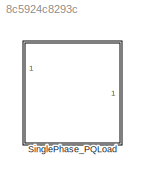
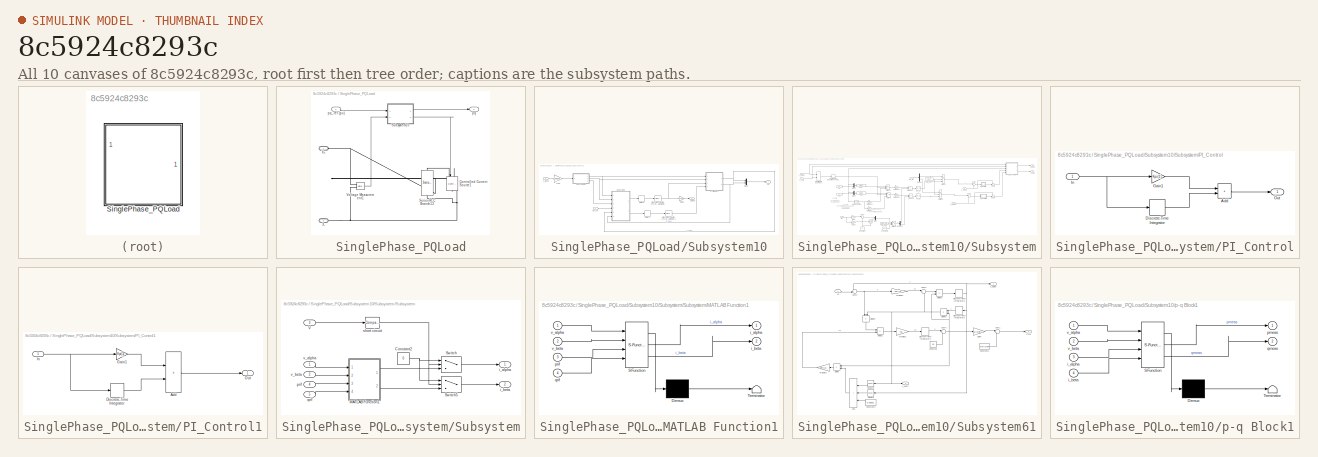
[diagram: thumbnail index - all 10 canvases of the model, root first then tree order]
MODEL slx_8c5924c8293c
KIND library
CONFIG AbsTol = auto
CONFIG EnableMultiTasking = off
CONFIG FixedStep = auto
CONFIG MaxStep = auto
CONFIG MinStep = auto
CONFIG RelTol = 1e-3
CONFIG SampleTimeConstraint = Unconstrained
CONFIG SolverName = VariableStepAuto
CONFIG StartTime = 0.0
CONFIG StopTime = 10.0
BLOCK [SubSystem] SinglePhase_PQLoad
  AncestorBlock = SinglePhase_PQLoad/SinglePhase_PQLoadwithFeedForwardwoFilter_woFreqDependency
  Ports = [1, 1, 0, 0, 0, 2]
  RequestExecContextInheritance = off
BLOCK [Reference] SinglePhase_PQLoad/Controlled Current Source1  REF=spsControlledCurrentSourceLib/Controlled Current Source
  NameLocation = left
  Ports = [1, 0, 0, 0, 0, 1, 1]
  SourceBlock = spsControlledCurrentSourceLib/Controlled Current Source
  SourceProductBaseCode = PS
  SourceType = Controlled Current Source
BLOCK [Reference] SinglePhase_PQLoad/Series RLC Branch12  REF=spsSeriesRLCBranchLib/Series RLC Branch
  NameLocation = left
  Ports = [0, 0, 0, 0, 0, 1, 1]
  SourceBlock = spsSeriesRLCBranchLib/Series RLC Branch
  SourceProductBaseCode = PS
  SourceType = Series RLC Branch
BLOCK [SubSystem] SinglePhase_PQLoad/Subsystem10
  Ports = [2, 2]
  RequestExecContextInheritance = off
BLOCK [Delay] SinglePhase_PQLoad/Subsystem10/Delay6
  DelayLength = 1
  InitialCondition = 0
  InputPortMap = u0
  Ports = [1, 1]
BLOCK [Delay] SinglePhase_PQLoad/Subsystem10/Delay7
  DelayLength = 1
  InitialCondition = 0
  InputPortMap = u0
  Ports = [1, 1]
BLOCK [Reference] SinglePhase_PQLoad/Subsystem10/Discrete Transfer Fcn (with initial outputs)  REF=simulink_extras/Additional
Discrete/Discrete
Transfer Fcn
(with initial outputs)
  Ports = [1, 1]
  SourceBlock = simulink_extras/Additional\nDiscrete/Discrete\nTransfer Fcn\n(with initial outputs)
  SourceProductBaseCode = SL
  SourceType = Discrete Transfer Function with Initial Outputs
BLOCK [Reference] SinglePhase_PQLoad/Subsystem10/Discrete Transfer Fcn (with initial outputs)1  REF=simulink_extras/Additional
Discrete/Discrete
Transfer Fcn
(with initial outputs)
  Ports = [1, 1]
  SourceBlock = simulink_extras/Additional\nDiscrete/Discrete\nTransfer Fcn\n(with initial outputs)
  SourceProductBaseCode = SL
  SourceType = Discrete Transfer Function with Initial Outputs
BLOCK [Gain] SinglePhase_PQLoad/Subsystem10/Gain1
  Gain = BasePower/(Vbase/sqrt(2))
BLOCK [Mux] SinglePhase_PQLoad/Subsystem10/Mux3
  DisplayOption = bar
  Inputs = 2
  Ports = [2, 1]
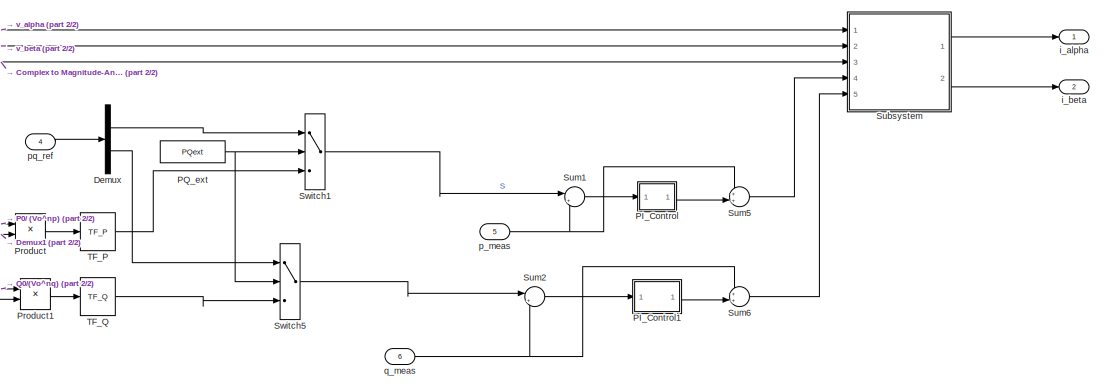
[diagram: SinglePhase_PQLoad/Subsystem10/Subsystem - part 1/2, middle right region]
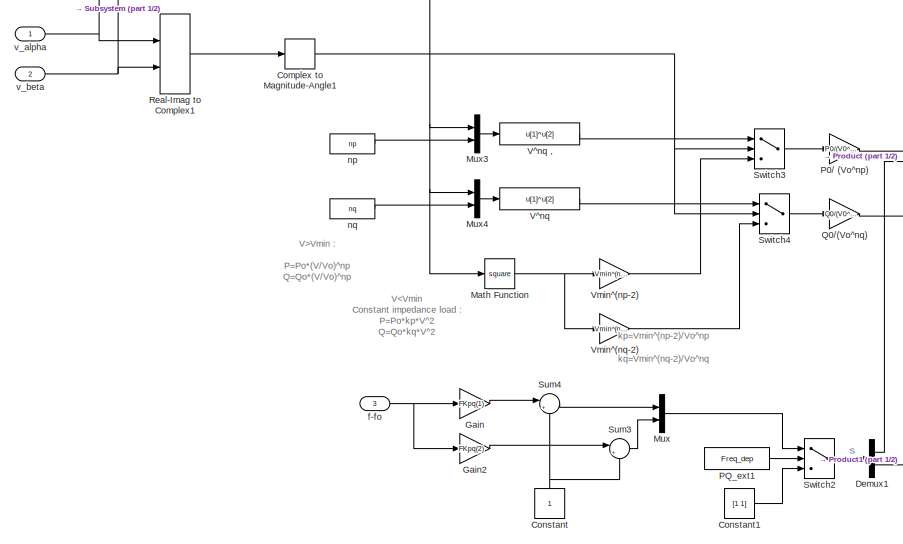
[diagram: SinglePhase_PQLoad/Subsystem10/Subsystem - part 2/2, left side, full height]
BLOCK [SubSystem] SinglePhase_PQLoad/Subsystem10/Subsystem
  Ports = [6, 2]
  RequestExecContextInheritance = off
BLOCK [ComplexToMagnitudeAngle] SinglePhase_PQLoad/Subsystem10/Subsystem/Complex to Magnitude-Angle1
  Output = Magnitude
  Ports = [1, 1]
BLOCK [Constant] SinglePhase_PQLoad/Subsystem10/Subsystem/Constant
  NameLocation = right
BLOCK [Constant] SinglePhase_PQLoad/Subsystem10/Subsystem/Constant1
  Value = [1 1]
BLOCK [Demux] SinglePhase_PQLoad/Subsystem10/Subsystem/Demux
  Outputs = 2
  Ports = [1, 2]
BLOCK [Demux] SinglePhase_PQLoad/Subsystem10/Subsystem/Demux1
  Outputs = 2
  Ports = [1, 2]
BLOCK [Gain] SinglePhase_PQLoad/Subsystem10/Subsystem/Gain
  Gain = FKpq(1)
BLOCK [Gain] SinglePhase_PQLoad/Subsystem10/Subsystem/Gain2
  Gain = FKpq(2)
BLOCK [Math] SinglePhase_PQLoad/Subsystem10/Subsystem/Math Function
  Operator = square
  Ports = [1, 1]
  SignedPower = on
BLOCK [Mux] SinglePhase_PQLoad/Subsystem10/Subsystem/Mux
  DisplayOption = bar
  Inputs = 2
  Ports = [2, 1]
BLOCK [Mux] SinglePhase_PQLoad/Subsystem10/Subsystem/Mux3
  DisplayOption = bar
  Inputs = 2
  Ports = [2, 1]
BLOCK [Mux] SinglePhase_PQLoad/Subsystem10/Subsystem/Mux4
  DisplayOption = bar
  Inputs = 2
  Ports = [2, 1]
BLOCK [Gain] SinglePhase_PQLoad/Subsystem10/Subsystem/P0// (Vo^np)
  Gain = P0/(V0^np)
  OutDataTypeStr = Inherit: Same as input
  ParamDataTypeStr = Inherit: Same as input
  SaturateOnIntegerOverflow = on
BLOCK [SubSystem] SinglePhase_PQLoad/Subsystem10/Subsystem/PI_Control
  Ports = [1, 1]
  RequestExecContextInheritance = off
BLOCK [Sum] SinglePhase_PQLoad/Subsystem10/Subsystem/PI_Control/Add
  IconShape = rectangular
  Ports = [2, 1]
BLOCK [DiscreteIntegrator] SinglePhase_PQLoad/Subsystem10/Subsystem/PI_Control/Discrete-Time Integrator
  ICPrevOutput = DiscIntNeverNeededParam
  ICPrevScaledInput = DiscIntNeverNeededParam
  InitialConditionSetting = Auto
  Ports = [1, 1]
  SampleTime = -1
  gainval = Kpi(2)
BLOCK [Gain] SinglePhase_PQLoad/Subsystem10/Subsystem/PI_Control/Gain1
  Gain = Kpi(1)
BLOCK [Inport] SinglePhase_PQLoad/Subsystem10/Subsystem/PI_Control/In
BLOCK [Outport] SinglePhase_PQLoad/Subsystem10/Subsystem/PI_Control/Out
BLOCK [SubSystem] SinglePhase_PQLoad/Subsystem10/Subsystem/PI_Control1
  Ports = [1, 1]
  RequestExecContextInheritance = off
BLOCK [Sum] SinglePhase_PQLoad/Subsystem10/Subsystem/PI_Control1/Add
  IconShape = rectangular
  Ports = [2, 1]
BLOCK [DiscreteIntegrator] SinglePhase_PQLoad/Subsystem10/Subsystem/PI_Control1/Discrete-Time Integrator
  ICPrevOutput = DiscIntNeverNeededParam
  ICPrevScaledInput = DiscIntNeverNeededParam
  InitialConditionSetting = Auto
  Ports = [1, 1]
  SampleTime = -1
  gainval = Kpi(2)
BLOCK [Gain] SinglePhase_PQLoad/Subsystem10/Subsystem/PI_Control1/Gain1
  Gain = Kpi(1)
BLOCK [Inport] SinglePhase_PQLoad/Subsystem10/Subsystem/PI_Control1/In
BLOCK [Outport] SinglePhase_PQLoad/Subsystem10/Subsystem/PI_Control1/Out
BLOCK [Constant] SinglePhase_PQLoad/Subsystem10/Subsystem/PQ_ext
  Value = PQext
BLOCK [Constant] SinglePhase_PQLoad/Subsystem10/Subsystem/PQ_ext1
  Value = Freq_dep
BLOCK [Product] SinglePhase_PQLoad/Subsystem10/Subsystem/Product
  Ports = [2, 1]
BLOCK [Product] SinglePhase_PQLoad/Subsystem10/Subsystem/Product1
  Ports = [2, 1]
BLOCK [Gain] SinglePhase_PQLoad/Subsystem10/Subsystem/Q0//(Vo^nq)
  Gain = Q0/(V0^nq)
  OutDataTypeStr = Inherit: Same as input
  ParamDataTypeStr = Inherit: Same as input
  SaturateOnIntegerOverflow = on
BLOCK [RealImagToComplex] SinglePhase_PQLoad/Subsystem10/Subsystem/Real-Imag to Complex1
  Ports = [2, 1]
BLOCK [SubSystem] SinglePhase_PQLoad/Subsystem10/Subsystem/Subsystem
  Ports = [5, 2]
  RequestExecContextInheritance = off
BLOCK [Constant] SinglePhase_PQLoad/Subsystem10/Subsystem/Subsystem/Constant2
  Value = 0
BLOCK [SubSystem] SinglePhase_PQLoad/Subsystem10/Subsystem/Subsystem/MATLAB Function1
  ErrorFcn = Stateflow.Translate.translate
  PermitHierarchicalResolution = ExplicitOnly
  Ports = [4, 2]
  RequestExecContextInheritance = off
  SFBlockType = MATLAB Function
  TreatAsAtomicUnit = on
BLOCK [Demux] SinglePhase_PQLoad/Subsystem10/Subsystem/Subsystem/MATLAB Function1/ Demux 
  Outputs = 1
  Ports = [1, 1]
BLOCK [S-Function] SinglePhase_PQLoad/Subsystem10/Subsystem/Subsystem/MATLAB Function1/ SFunction 
  EnableBusSupport = off
  FunctionName = sf_sfun
  PortCounts = [4 3]
  Ports = [4, 3]
  SFcnIsStateOwnerBlock = off
  SFunctionDeploymentMode = off
  Tag = Stateflow S-Function 3
BLOCK [Terminator] SinglePhase_PQLoad/Subsystem10/Subsystem/Subsystem/MATLAB Function1/ Terminator 
BLOCK [Outport] SinglePhase_PQLoad/Subsystem10/Subsystem/Subsystem/MATLAB Function1/i_alpha
BLOCK [Outport] SinglePhase_PQLoad/Subsystem10/Subsystem/Subsystem/MATLAB Function1/i_beta
  Port = 2
BLOCK [Inport] SinglePhase_PQLoad/Subsystem10/Subsystem/Subsystem/MATLAB Function1/prif
  Port = 3
BLOCK [Inport] SinglePhase_PQLoad/Subsystem10/Subsystem/Subsystem/MATLAB Function1/qrif
  Port = 4
BLOCK [Inport] SinglePhase_PQLoad/Subsystem10/Subsystem/Subsystem/MATLAB Function1/v_alpha
BLOCK [Inport] SinglePhase_PQLoad/Subsystem10/Subsystem/Subsystem/MATLAB Function1/v_beta
  Port = 2
BLOCK [Switch] SinglePhase_PQLoad/Subsystem10/Subsystem/Subsystem/Switch
  Criteria = u2 > Threshold
  InputSameDT = off
  SaturateOnIntegerOverflow = off
BLOCK [Switch] SinglePhase_PQLoad/Subsystem10/Subsystem/Subsystem/Switch5
  Criteria = u2 > Threshold
  InputSameDT = off
  SaturateOnIntegerOverflow = off
BLOCK [Inport] SinglePhase_PQLoad/Subsystem10/Subsystem/Subsystem/V
  Port = 3
BLOCK [Outport] SinglePhase_PQLoad/Subsystem10/Subsystem/Subsystem/i_alpha
BLOCK [Outport] SinglePhase_PQLoad/Subsystem10/Subsystem/Subsystem/i_beta
  Port = 2
BLOCK [Inport] SinglePhase_PQLoad/Subsystem10/Subsystem/Subsystem/prif
  NameLocation = left
  Port = 4
BLOCK [Inport] SinglePhase_PQLoad/Subsystem10/Subsystem/Subsystem/qrif
  NameLocation = left
  Port = 5
BLOCK [Reference] SinglePhase_PQLoad/Subsystem10/Subsystem/Subsystem/short circuit  REF=simulink/Logic and Bit
Operations/Compare
To Constant
  Ports = [1, 1]
  SourceBlock = simulink/Logic and Bit\nOperations/Compare\nTo Constant
  SourceProductBaseCode = SL
  SourceType = Compare To Constant
BLOCK [Inport] SinglePhase_PQLoad/Subsystem10/Subsystem/Subsystem/v_alpha
  NameLocation = left
BLOCK [Inport] SinglePhase_PQLoad/Subsystem10/Subsystem/Subsystem/v_beta
  NameLocation = left
  Port = 2
BLOCK [Sum] SinglePhase_PQLoad/Subsystem10/Subsystem/Sum1
  Inputs = |+-
  Ports = [2, 1]
BLOCK [Sum] SinglePhase_PQLoad/Subsystem10/Subsystem/Sum2
  Inputs = |+-
  Ports = [2, 1]
BLOCK [Sum] SinglePhase_PQLoad/Subsystem10/Subsystem/Sum3
  Inputs = |++
  Ports = [2, 1]
BLOCK [Sum] SinglePhase_PQLoad/Subsystem10/Subsystem/Sum4
  Inputs = |++
  Ports = [2, 1]
BLOCK [Sum] SinglePhase_PQLoad/Subsystem10/Subsystem/Sum5
  Inputs = ++|
  Ports = [2, 1]
BLOCK [Sum] SinglePhase_PQLoad/Subsystem10/Subsystem/Sum6
  Inputs = ++|
  Ports = [2, 1]
BLOCK [Switch] SinglePhase_PQLoad/Subsystem10/Subsystem/Switch1
  SaturateOnIntegerOverflow = off
  Threshold = 0.5
BLOCK [Switch] SinglePhase_PQLoad/Subsystem10/Subsystem/Switch2
  SaturateOnIntegerOverflow = off
  Threshold = 0.5
BLOCK [Switch] SinglePhase_PQLoad/Subsystem10/Subsystem/Switch3
  SaturateOnIntegerOverflow = off
  Threshold = Vmin
BLOCK [Switch] SinglePhase_PQLoad/Subsystem10/Subsystem/Switch4
  SaturateOnIntegerOverflow = off
  Threshold = Vmin
BLOCK [Switch] SinglePhase_PQLoad/Subsystem10/Subsystem/Switch5
  SaturateOnIntegerOverflow = off
  Threshold = 0.5
BLOCK [Reference] SinglePhase_PQLoad/Subsystem10/Subsystem/TF_P  REF=spsDynamicLoadModel/Discrete/Positive Sequence 
current/TF_P
  Ports = [1, 1]
  SourceBlock = spsDynamicLoadModel/Discrete/Positive Sequence \ncurrent/TF_P
  SourceProductBaseCode = PS
  SourceType = Discrete Lead-Lag Controller
BLOCK [Reference] SinglePhase_PQLoad/Subsystem10/Subsystem/TF_Q  REF=spsDynamicLoadModel/Discrete/Positive Sequence 
current/TF_Q
  Ports = [1, 1]
  SourceBlock = spsDynamicLoadModel/Discrete/Positive Sequence \ncurrent/TF_Q
  SourceProductBaseCode = PS
  SourceType = Discrete Lead-Lag Controller
BLOCK [Fcn] SinglePhase_PQLoad/Subsystem10/Subsystem/V^nq
  Expr = u[1]^u[2]
BLOCK [Fcn] SinglePhase_PQLoad/Subsystem10/Subsystem/V^nq ,
  Expr = u[1]^u[2]
BLOCK [Gain] SinglePhase_PQLoad/Subsystem10/Subsystem/Vmin^(np-2)
  Gain = Vmin^(np-2)
  OutDataTypeStr = Inherit: Same as input
  ParamDataTypeStr = Inherit: Same as input
  SaturateOnIntegerOverflow = on
BLOCK [Gain] SinglePhase_PQLoad/Subsystem10/Subsystem/Vmin^(nq-2)
  Gain = Vmin^(nq-2)
  OutDataTypeStr = Inherit: Same as input
  ParamDataTypeStr = Inherit: Same as input
  SaturateOnIntegerOverflow = on
BLOCK [Inport] SinglePhase_PQLoad/Subsystem10/Subsystem/f-fo
  Port = 3
BLOCK [Outport] SinglePhase_PQLoad/Subsystem10/Subsystem/i_alpha
BLOCK [Outport] SinglePhase_PQLoad/Subsystem10/Subsystem/i_beta
  Port = 2
BLOCK [Constant] SinglePhase_PQLoad/Subsystem10/Subsystem/np
  Value = np
BLOCK [Constant] SinglePhase_PQLoad/Subsystem10/Subsystem/nq
  Value = nq
BLOCK [Inport] SinglePhase_PQLoad/Subsystem10/Subsystem/p_meas
  Port = 5
BLOCK [Inport] SinglePhase_PQLoad/Subsystem10/Subsystem/pq_ref
  Port = 4
BLOCK [Inport] SinglePhase_PQLoad/Subsystem10/Subsystem/q_meas
  Port = 6
BLOCK [Inport] SinglePhase_PQLoad/Subsystem10/Subsystem/v_alpha
BLOCK [Inport] SinglePhase_PQLoad/Subsystem10/Subsystem/v_beta
  Port = 2
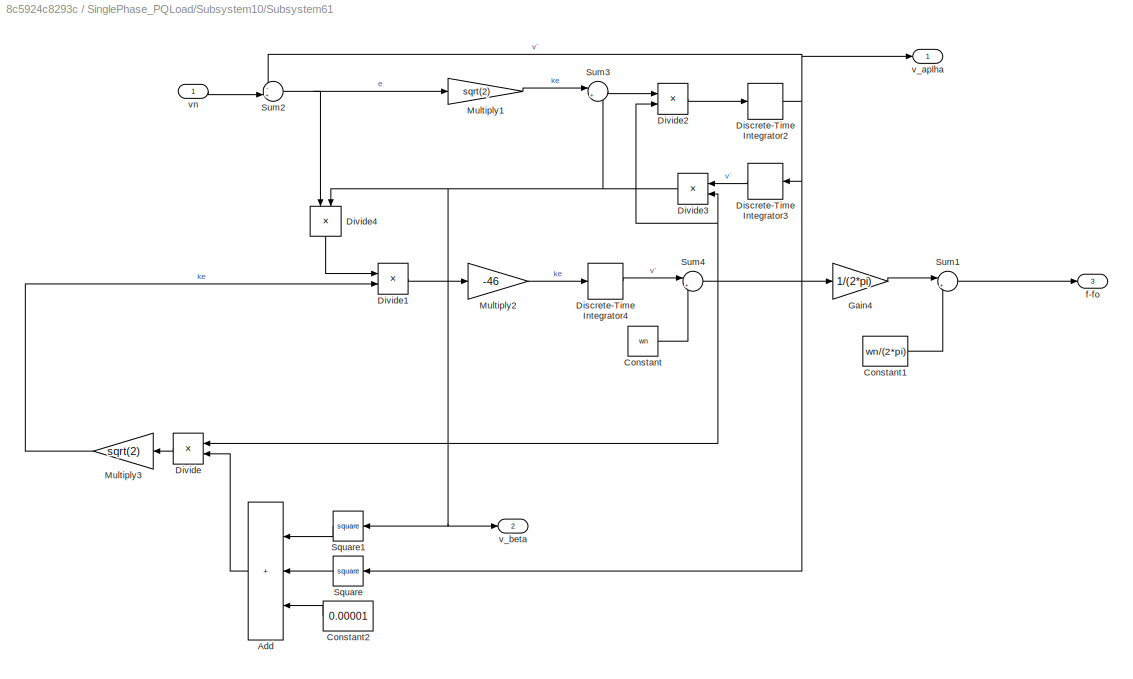
BLOCK [SubSystem] SinglePhase_PQLoad/Subsystem10/Subsystem61
  Ports = [1, 3]
  RequestExecContextInheritance = off
BLOCK [Sum] SinglePhase_PQLoad/Subsystem10/Subsystem61/Add
  IconShape = rectangular
  Inputs = +++
  NameLocation = top
  Ports = [3, 1]
BLOCK [Constant] SinglePhase_PQLoad/Subsystem10/Subsystem61/Constant
  Value = wn
BLOCK [Constant] SinglePhase_PQLoad/Subsystem10/Subsystem61/Constant1
  Value = wn/(2*pi)
BLOCK [Constant] SinglePhase_PQLoad/Subsystem10/Subsystem61/Constant2
  NameLocation = top
  Value = 0.00001
BLOCK [DiscreteIntegrator] SinglePhase_PQLoad/Subsystem10/Subsystem61/Discrete-Time Integrator2
  ICPrevOutput = DiscIntNeverNeededParam
  ICPrevScaledInput = DiscIntNeverNeededParam
  InitialConditionSetting = Auto
  Ports = [1, 1]
  SampleTime = -1
BLOCK [DiscreteIntegrator] SinglePhase_PQLoad/Subsystem10/Subsystem61/Discrete-Time Integrator3
  ICPrevOutput = DiscIntNeverNeededParam
  ICPrevScaledInput = DiscIntNeverNeededParam
  InitialConditionSetting = Auto
  IntegratorMethod = Integration: Backward Euler
  NameLocation = top
  Ports = [1, 1]
  SampleTime = -1
BLOCK [DiscreteIntegrator] SinglePhase_PQLoad/Subsystem10/Subsystem61/Discrete-Time Integrator4
  ICPrevOutput = DiscIntNeverNeededParam
  ICPrevScaledInput = DiscIntNeverNeededParam
  InitialConditionSetting = Auto
  Ports = [1, 1]
  SampleTime = -1
BLOCK [Product] SinglePhase_PQLoad/Subsystem10/Subsystem61/Divide
  Inputs = */
  NameLocation = top
  Ports = [2, 1]
BLOCK [Product] SinglePhase_PQLoad/Subsystem10/Subsystem61/Divide1
  Inputs = **
  Ports = [2, 1]
BLOCK [Product] SinglePhase_PQLoad/Subsystem10/Subsystem61/Divide2
  Inputs = **
  Ports = [2, 1]
BLOCK [Product] SinglePhase_PQLoad/Subsystem10/Subsystem61/Divide3
  Inputs = **
  NameLocation = top
  Ports = [2, 1]
BLOCK [Product] SinglePhase_PQLoad/Subsystem10/Subsystem61/Divide4
  Inputs = **
  NameLocation = left
  Ports = [2, 1]
BLOCK [Gain] SinglePhase_PQLoad/Subsystem10/Subsystem61/Gain4
  Gain = 1/(2*pi)
BLOCK [Gain] SinglePhase_PQLoad/Subsystem10/Subsystem61/Multiply1
  Gain = sqrt(2)
BLOCK [Gain] SinglePhase_PQLoad/Subsystem10/Subsystem61/Multiply2
  Gain = -46
BLOCK [Gain] SinglePhase_PQLoad/Subsystem10/Subsystem61/Multiply3
  Gain = sqrt(2)
  NameLocation = top
BLOCK [Math] SinglePhase_PQLoad/Subsystem10/Subsystem61/Square
  NameLocation = top
  Operator = square
  Ports = [1, 1]
BLOCK [Math] SinglePhase_PQLoad/Subsystem10/Subsystem61/Square1
  NameLocation = top
  Operator = square
  Ports = [1, 1]
BLOCK [Sum] SinglePhase_PQLoad/Subsystem10/Subsystem61/Sum1
  Inputs = |+-
  Ports = [2, 1]
BLOCK [Sum] SinglePhase_PQLoad/Subsystem10/Subsystem61/Sum2
  Inputs = -+|
  Ports = [2, 1]
BLOCK [Sum] SinglePhase_PQLoad/Subsystem10/Subsystem61/Sum3
  Inputs = |+-
  Ports = [2, 1]
BLOCK [Sum] SinglePhase_PQLoad/Subsystem10/Subsystem61/Sum4
  Inputs = |++
  Ports = [2, 1]
BLOCK [Outport] SinglePhase_PQLoad/Subsystem10/Subsystem61/f-fo
  Port = 3
BLOCK [Outport] SinglePhase_PQLoad/Subsystem10/Subsystem61/v_aplha
BLOCK [Outport] SinglePhase_PQLoad/Subsystem10/Subsystem61/v_beta
  Port = 2
BLOCK [Inport] SinglePhase_PQLoad/Subsystem10/Subsystem61/vn
BLOCK [Gain] SinglePhase_PQLoad/Subsystem10/V>pu
  Gain = 1/Vbase/sqrt(2)
BLOCK [Outport] SinglePhase_PQLoad/Subsystem10/i_alpha
  Port = 2
BLOCK [SubSystem] SinglePhase_PQLoad/Subsystem10/p-q Block1
  ErrorFcn = Stateflow.Translate.translate
  PermitHierarchicalResolution = ExplicitOnly
  Ports = [4, 2]
  RequestExecContextInheritance = off
  SFBlockType = MATLAB Function
  TreatAsAtomicUnit = on
BLOCK [Demux] SinglePhase_PQLoad/Subsystem10/p-q Block1/ Demux 
  Outputs = 1
  Ports = [1, 1]
BLOCK [S-Function] SinglePhase_PQLoad/Subsystem10/p-q Block1/ SFunction 
  EnableBusSupport = off
  FunctionName = sf_sfun
  PortCounts = [4 3]
  Ports = [4, 3]
  SFcnIsStateOwnerBlock = off
  SFunctionDeploymentMode = off
  Tag = Stateflow S-Function 4
BLOCK [Terminator] SinglePhase_PQLoad/Subsystem10/p-q Block1/ Terminator 
BLOCK [Inport] SinglePhase_PQLoad/Subsystem10/p-q Block1/i_alpha
  Port = 3
BLOCK [Inport] SinglePhase_PQLoad/Subsystem10/p-q Block1/i_beta
  Port = 4
BLOCK [Outport] SinglePhase_PQLoad/Subsystem10/p-q Block1/pmeas
BLOCK [Outport] SinglePhase_PQLoad/Subsystem10/p-q Block1/qmeas
  Port = 2
BLOCK [Inport] SinglePhase_PQLoad/Subsystem10/p-q Block1/v_alpha
BLOCK [Inport] SinglePhase_PQLoad/Subsystem10/p-q Block1/v_beta
  Port = 2
BLOCK [Outport] SinglePhase_PQLoad/Subsystem10/pq
BLOCK [Inport] SinglePhase_PQLoad/Subsystem10/pq_ref
BLOCK [Inport] SinglePhase_PQLoad/Subsystem10/v_alpha
  Port = 2
BLOCK [Reference] SinglePhase_PQLoad/Voltage Measurement1  REF=spsVoltageMeasurementLib/Voltage Measurement
  Ports = [0, 1, 0, 0, 0, 2]
  SourceBlock = spsVoltageMeasurementLib/Voltage Measurement
  SourceProductBaseCode = PS
  SourceType = Voltage Measurement
BLOCK [PMIOPort] SinglePhase_PQLoad/X+
  Side = Left
BLOCK [PMIOPort] SinglePhase_PQLoad/X-
  Port = 2
  Side = Left
BLOCK [Outport] SinglePhase_PQLoad/pq
BLOCK [Inport] SinglePhase_PQLoad/pq_ref (pu)
ANNOTATION SinglePhase_PQLoad/Subsystem10/Subsystem: V<Vmin Constant impedance load : P=Po*kp*V^2 Q=Qo*kq*V^2
ANNOTATION SinglePhase_PQLoad/Subsystem10/Subsystem: V>Vmin : P=Po*(V/Vo)^np Q=Qo*(V/Vo)^np
ANNOTATION SinglePhase_PQLoad/Subsystem10/Subsystem: kp=Vmin^(np-2)/Vo^np kq=Vmin^(nq-2)/Vo^nq
CHART SinglePhase_PQLoad/Subsystem10/Subsystem/Subsystem/MATLAB Function1 states=1 transitions=1
  STATE_LABEL 'eML_blk_kernel()'
  STATE_LABEL 'SCRIPT:\n\nfunction [i_alpha,i_beta]= fcn(v_alpha,v_beta,prif,qrif)\ni_alpha=(v_alpha.*prif+v_beta.*qrif)/(v_alpha.^2+v_beta.^2);\ni_beta=(v_beta.*prif-v_alpha.*qrif)/(v_alpha.^2+v_beta.^2);\n'
CHART SinglePhase_PQLoad/Subsystem10/p-q Block1 states=1 transitions=1
  STATE_LABEL 'eML_blk_kernel()'
  STATE_LABEL 'SCRIPT:\nfunction [pmeas,qmeas]= fcn(v_alpha,v_beta,i_alpha,i_beta)\n\npmeas=v_alpha.*i_alpha+v_beta.*i_beta;\nqmeas=v_beta.*i_alpha-v_alpha.*i_beta;'
CHART  states=0 transitions=0
CHART  states=0 transitions=0
